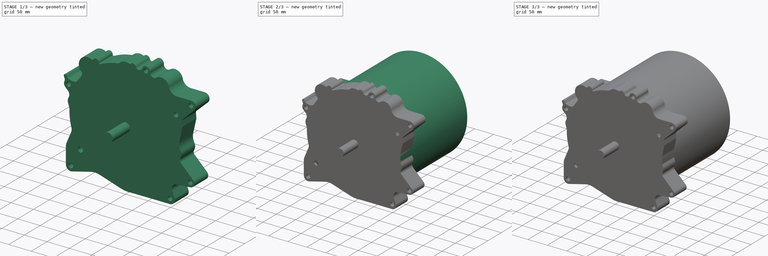
[diagram: build sequence overview — one tinted view per stage of 3, left to right]
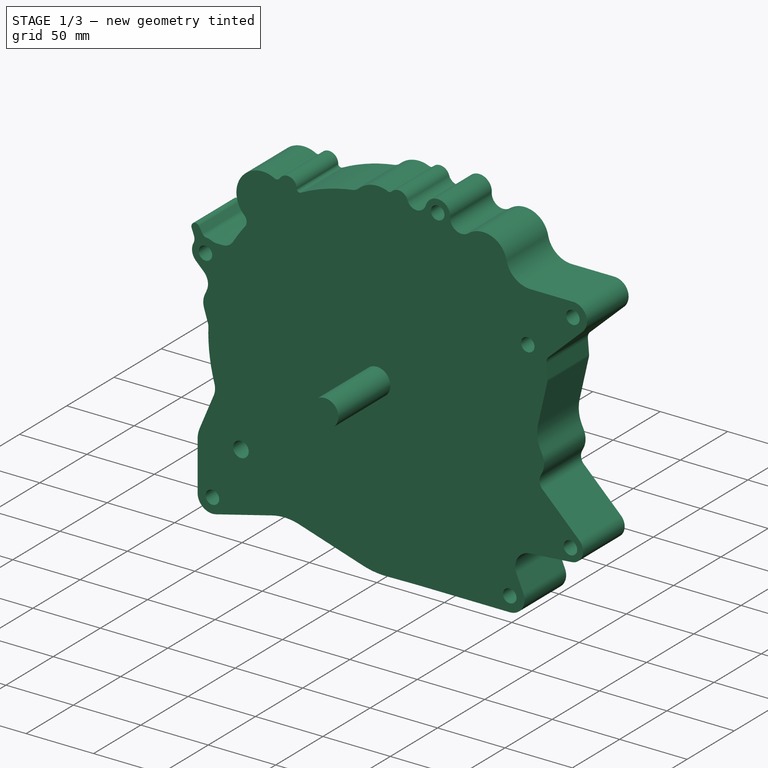
[diagram: stage 1 of 3 — iso view after this stage's code; geometry added in this stage tinted green]
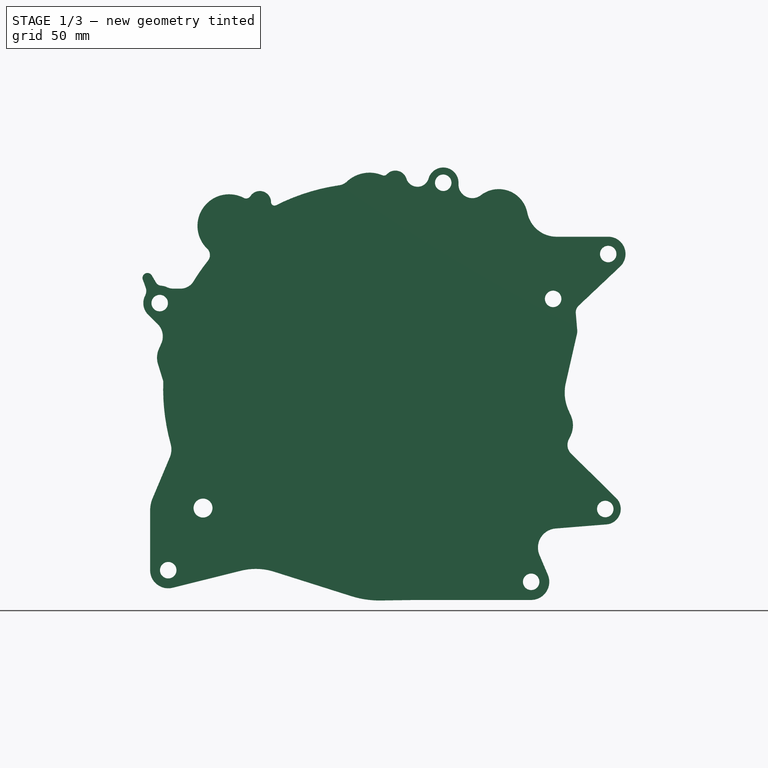
[diagram: stage 1 of 3 — front view after this stage's code; geometry added in this stage tinted green]
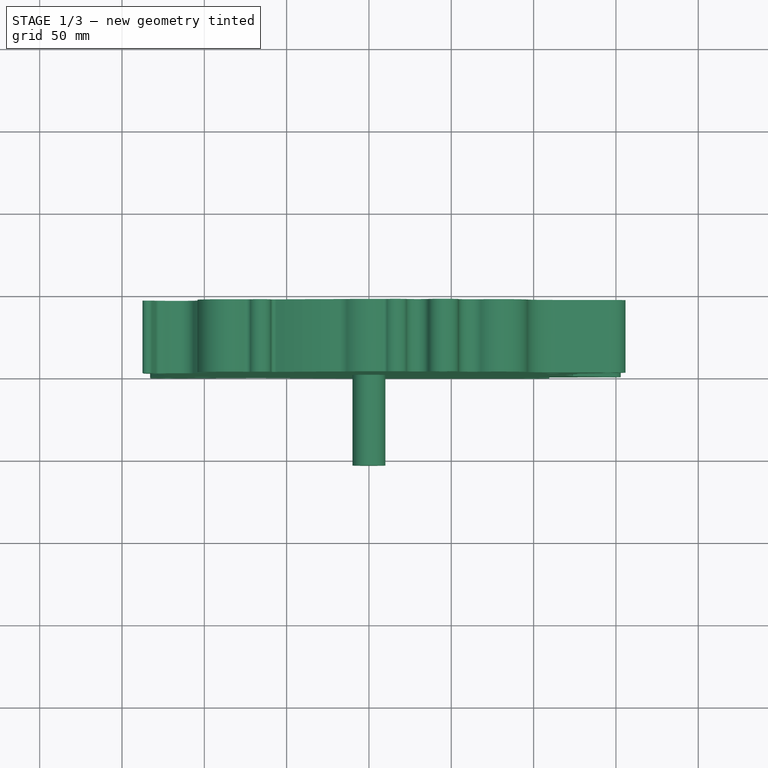
[diagram: stage 1 of 3 — top view after this stage's code; geometry added in this stage tinted green]
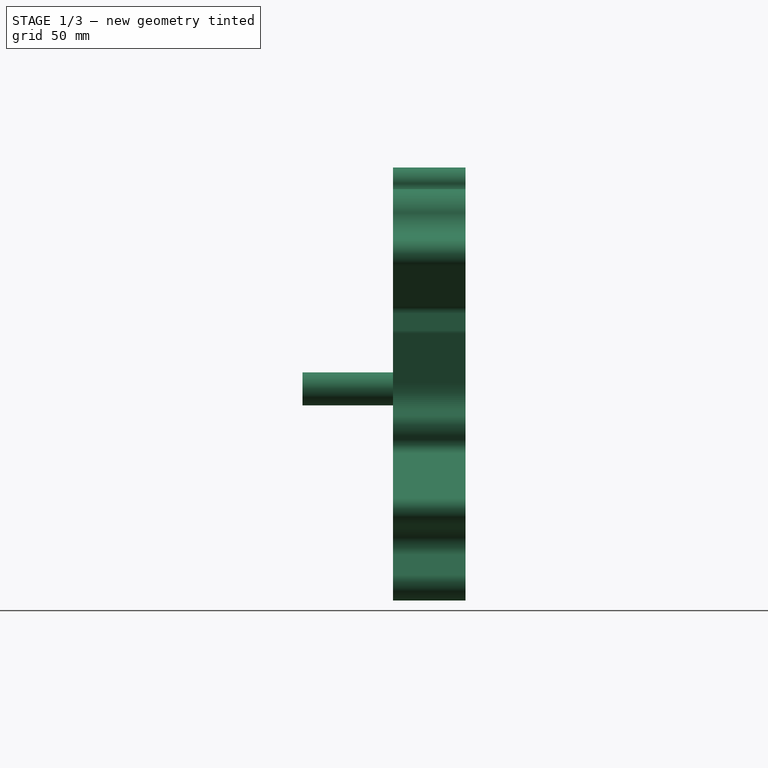
[diagram: stage 1 of 3 — right view after this stage's code; geometry added in this stage tinted green]
FCSTD DOCUMENT  (FreeCAD 0.19R21125 (Git))
Label: LEAF_MOTOR
License: All rights reserved
LicenseURL: http://en.wikipedia.org/wiki/All_rights_reserved
objects: Sketcher::SketchObject×6, PartDesign::Pad×6, PartDesign::Body×1
note: 19 computed .brp shape members not serialized (recipe doc carries the construction recipe); baked Part::Feature solids carry a one-line shape summary decoded from their .brp

FEATURE [Sketcher::SketchObject] Sketch
  MapMode = 5
  Placement = pos=(0,0,0) rot=(1,0,0;1.5708rad)
  Support = -> [XZ_Plane]
  sketch-geometry (1):
    g0: Circle CenterX=0 CenterY=0 CenterZ=0 NormalX=0 NormalY=0 NormalZ=1 AngleXU=0 Radius=10
  constraints (2):
    c: Coincident(g0,g-1)
    c: Radius(g0) = 10
FEATURE [PartDesign::Pad] Pad
  Length = 55
  Length2 = 100
  Placement = pos=(0,0,0) rot=(1,0,0;1.5708rad)
  Profile = -> Sketch
  Type = 0
FEATURE [Sketcher::SketchObject] Sketch001
  MapMode = 5
  Placement = pos=(0,0,0) rot=(1,0,0;1.5708rad)
  Support = -> [XZ_Plane]
  sketch-geometry (77):
    g0: Circle CenterX=145.31 CenterY=81.91 CenterZ=0 NormalX=0 NormalY=0 NormalZ=1 AngleXU=0 Radius=5
    g1: Circle CenterX=45.11 CenterY=125.2 CenterZ=0 NormalX=0 NormalY=0 NormalZ=1 AngleXU=0 Radius=5
    g2: Circle CenterX=143.53 CenterY=-72.95 CenterZ=0 NormalX=0 NormalY=0 NormalZ=1 AngleXU=0 Radius=5
    g3: Circle CenterX=98.52 CenterY=-117.19 CenterZ=0 NormalX=0 NormalY=0 NormalZ=1 AngleXU=0 Radius=5
    g4: Circle CenterX=-121.92 CenterY=-110.12 CenterZ=0 NormalX=0 NormalY=0 NormalZ=1 AngleXU=0 Radius=5
    g5: Circle CenterX=-127.1 CenterY=52.11 CenterZ=0 NormalX=0 NormalY=0 NormalZ=1 AngleXU=0 Radius=5
    g6: ArcOfCircle CenterX=78.8 CenterY=103.63 CenterZ=0 NormalX=0 NormalY=0 NormalZ=1 AngleXU=0 Radius=17.7094 StartAngle=0.194383 EndAngle=2.23046
    g7: Circle CenterX=111.87 CenterY=54.67 CenterZ=0 NormalX=0 NormalY=0 NormalZ=1 AngleXU=0 Radius=5
    g8: Circle CenterX=-100.79 CenterY=-72.38 CenterZ=0 NormalX=0 NormalY=0 NormalZ=1 AngleXU=0 Radius=5.7521
    g9: LineSegment StartX=-77.6769 StartY=-110.435 StartZ=0 EndX=-119.261 EndY=-120.794 EndZ=0
    g10: LineSegment StartX=-132.92 StartY=-73.8836 StartZ=0 EndX=-132.92 EndY=-110.12 EndZ=0
    g11: ArcOfCircle CenterX=-121.92 CenterY=-110.12 CenterZ=0 NormalX=0 NormalY=0 NormalZ=1 AngleXU=0 Radius=11 StartAngle=3.14159 EndAngle=4.95653
    g12: GeomPoint X=-121.92 Y=-110.12 Z=0
    g13: GeomPoint X=-121.92 Y=-110.12 Z=0
    g14: GeomPoint X=-121.92 Y=-110.12 Z=0
    g15: GeomPoint X=-121.92 Y=-110.12 Z=0
    g16: GeomPoint X=-121.92 Y=-110.12 Z=0
    g17: GeomPoint X=-121.92 Y=-110.12 Z=0
    g18: GeomPoint X=-121.92 Y=-110.12 Z=0
    g19: LineSegment StartX=-57.595 StartY=-111.059 StartZ=0 EndX=-10.6088 EndY=-125.917 EndZ=0
    g20: LineSegment StartX=7.13742 StartY=-128.523 StartZ=0 EndX=26.0447 EndY=-128.245 EndZ=0
    g21: LineSegment StartX=33.532 StartY=-128.19 StartZ=0 EndX=98.52 EndY=-128.19 EndZ=0
    g22: LineSegment StartX=108.644 StartY=-112.888 StartZ=0 EndX=103.568 EndY=-100.943 EndZ=0
    g23: LineSegment StartX=113.341 StartY=-84.8 StartZ=0 EndX=144.283 EndY=-82.3099 EndZ=0
    g24: LineSegment StartX=150.121 StartY=-66.2619 StartZ=0 EndX=122.754 EndY=-39.2916 EndZ=0
    g25: ArcOfCircle CenterX=143.53 CenterY=-72.95 CenterZ=0 NormalX=0 NormalY=0 NormalZ=1 AngleXU=0 Radius=9.39014 StartAngle=4.79269 EndAngle=7.07588
    g26: ArcOfCircle CenterX=98.52 CenterY=-117.19 CenterZ=0 NormalX=0 NormalY=0 NormalZ=1 AngleXU=0 Radius=11 StartAngle=4.71239 EndAngle=6.68499
    g27: ArcOfCircle CenterX=114.274 CenterY=-96.3945 CenterZ=0 NormalX=0 NormalY=0 NormalZ=1 AngleXU=0 Radius=11.6319 StartAngle=1.6511 EndAngle=3.54339
    g28: ArcOfCircle CenterX=-68.7411 CenterY=-146.306 CenterZ=0 NormalX=0 NormalY=0 NormalZ=1 AngleXU=0 Radius=36.9672 StartAngle=1.26452 EndAngle=1.81494
    g29: ArcOfCircle CenterX=6.31227 CenterY=-72.4088 CenterZ=0 NormalX=0 NormalY=0 NormalZ=1 AngleXU=0 Radius=56.1204 StartAngle=4.40611 EndAngle=4.72709
    g30: ArcOfCircle CenterX=33.532 CenterY=-637.417 CenterZ=0 NormalX=0 NormalY=0 NormalZ=1 AngleXU=0 Radius=509.227 StartAngle=1.5708 EndAngle=1.5855
    g31: LineSegment StartX=-131.421 StartY=-66.4509 StartZ=0 EndX=-120.958 EndY=-41.5672 EndZ=0
    g32: ArcOfCircle CenterX=0 CenterY=0 CenterZ=0 NormalX=0 NormalY=0 NormalZ=1 AngleXU=0 Radius=125 StartAngle=3.10493 EndAngle=3.4125
    g33: ArcOfCircle CenterX=0 CenterY=0 CenterZ=0 NormalX=0 NormalY=0 NormalZ=1 AngleXU=0 Radius=125 StartAngle=2.46886 EndAngle=2.59213
    g34: ArcOfCircle CenterX=0 CenterY=0 CenterZ=0 NormalX=0 NormalY=0 NormalZ=1 AngleXU=0 Radius=125 StartAngle=1.7161 EndAngle=2.039
    g35: LineSegment StartX=113.959 StartY=92.4276 StartZ=0 EndX=145.31 EndY=92.4276 EndZ=0
    g36: LineSegment StartX=152.523 StartY=74.2557 StartZ=0 EndX=127.371 EndY=50.5525 EndZ=0
    g37: LineSegment StartX=125.621 StartY=45.9787 StartZ=0 EndX=126.516 EndY=35.3818 EndZ=0
    g38: LineSegment StartX=126.394 StartY=33.6402 StartZ=0 EndX=119.54 EndY=3.52367 EndZ=0
    g39: LineSegment StartX=121.143 StartY=-12.8736 StartZ=0 EndX=122.659 EndY=-16.2806 EndZ=0
    g40: LineSegment StartX=122.494 StartY=-28.3585 StartZ=0 EndX=121.283 EndY=-30.8895 EndZ=0
    g41: LineSegment StartX=-124.916 StartY=4.58158 StartZ=0 EndX=-128.147 EndY=15.1065 EndZ=0
    g42: LineSegment StartX=-127.606 StartY=24.2389 StartZ=0 EndX=-126.126 EndY=27.5858 EndZ=0
    g43: LineSegment StartX=-128.395 StartY=39.4523 StartZ=0 EndX=-134.488 EndY=45.4427 EndZ=0
    g44: ArcOfCircle CenterX=-127.1 CenterY=52.11 CenterZ=0 NormalX=0 NormalY=0 NormalZ=1 AngleXU=0 Radius=9.95179 StartAngle=2.66841 EndAngle=3.87575
    g45: ArcOfCircle CenterX=-114.445 CenterY=70.0825 CenterZ=0 NormalX=0 NormalY=0 NormalZ=1 AngleXU=0 Radius=9.19867 StartAngle=4.71239 EndAngle=5.73372
    g46: ArcOfCircle CenterX=-127.1 CenterY=52.11 CenterZ=0 NormalX=0 NormalY=0 NormalZ=1 AngleXU=0 Radius=10.6173 StartAngle=1.13735 EndAngle=1.49131
    g47: ArcOfCircle CenterX=-134.525 CenterY=67.3959 CenterZ=0 NormalX=0 NormalY=0 NormalZ=1 AngleXU=0 Radius=3.03133 StartAngle=0.538206 EndAngle=3.57907
    g48: LineSegment StartX=-135.648 StartY=61.6591 StartZ=0 EndX=-137.271 EndY=66.1117 EndZ=0
    g49: LineSegment StartX=-129.326 StartY=64.6011 StartZ=0 EndX=-131.922 EndY=68.9498 EndZ=0
    g50: LineSegment StartX=-118.727 StartY=60.8838 StartZ=0 EndX=-114.445 EndY=60.8838 EndZ=0
    g51: ArcOfCircle CenterX=-66.2801 CenterY=113.377 CenterZ=0 NormalX=0 NormalY=0 NormalZ=1 AngleXU=0 Radius=6.81232 StartAngle=0.00576419 EndAngle=2.56858
    g52: ArcOfCircle CenterX=-84.95 CenterY=99 CenterZ=0 NormalX=0 NormalY=0 NormalZ=1 AngleXU=0 Radius=19.2018 StartAngle=1.08808 EndAngle=3.94736
    g53: ArcOfCircle CenterX=0.332168 CenterY=111.208 CenterZ=0 NormalX=0 NormalY=0 NormalZ=1 AngleXU=0 Radius=20.1273 StartAngle=1.17216 EndAngle=2.3197
    g54: ArcOfCircle CenterX=16.0562 CenterY=125.557 CenterZ=0 NormalX=0 NormalY=0 NormalZ=1 AngleXU=0 Radius=7.03106 StartAngle=0.306903 EndAngle=2.39152
    g55: ArcOfCircle CenterX=45.11 CenterY=125.2 CenterZ=0 NormalX=0 NormalY=0 NormalZ=1 AngleXU=0 Radius=9.26978 StartAngle=6.23132 EndAngle=9.13836
    g56: ArcOfCircle CenterX=62.7826 CenterY=124.283 CenterZ=0 NormalX=0 NormalY=0 NormalZ=1 AngleXU=0 Radius=8.42657 StartAngle=3.08973 EndAngle=5.37205
    g57: ArcOfCircle CenterX=113.959 CenterY=110.552 CenterZ=0 NormalX=0 NormalY=0 NormalZ=1 AngleXU=0 Radius=18.124 StartAngle=3.33598 EndAngle=4.71239
    g58: ArcOfCircle CenterX=145.31 CenterY=81.91 CenterZ=0 NormalX=0 NormalY=0 NormalZ=1 AngleXU=0 Radius=10.5176 StartAngle=5.46813 EndAngle=7.85398
    g59: ArcOfCircle CenterX=131.235 CenterY=46.4528 CenterZ=0 NormalX=0 NormalY=0 NormalZ=1 AngleXU=0 Radius=5.63341 StartAngle=2.32654 EndAngle=3.22584
    g60: ArcOfCircle CenterX=144.982 CenterY=-2.26635 CenterZ=0 NormalX=0 NormalY=0 NormalZ=1 AngleXU=0 Radius=26.0924 StartAngle=2.91783 EndAngle=3.56024
    g61: ArcOfCircle CenterX=109.49 CenterY=-22.1402 CenterZ=0 NormalX=0 NormalY=0 NormalZ=1 AngleXU=0 Radius=14.4138 StartAngle=5.83713 EndAngle=6.70183
    g62: ArcOfCircle CenterX=127.911 CenterY=-34.0589 CenterZ=0 NormalX=0 NormalY=0 NormalZ=1 AngleXU=0 Radius=7.34675 StartAngle=2.69554 EndAngle=3.93429
    g63: ArcOfCircle CenterX=-101.987 CenterY=81.2547 CenterZ=0 NormalX=0 NormalY=0 NormalZ=1 AngleXU=0 Radius=5.39794 StartAngle=5.61045 EndAngle=7.08895
    g64: ArcOfCircle CenterX=-74.6019 CenterY=118.746 CenterZ=0 NormalX=0 NormalY=0 NormalZ=1 AngleXU=0 Radius=3.09136 StartAngle=4.22968 EndAngle=5.71017
    g65: ArcOfCircle CenterX=-57.3609 CenterY=113.428 CenterZ=0 NormalX=0 NormalY=0 NormalZ=1 AngleXU=0 Radius=2.10695 StartAngle=3.14736 EndAngle=5.18059
    g66: ArcOfCircle CenterX=29.4672 CenterY=129.807 CenterZ=0 NormalX=0 NormalY=0 NormalZ=1 AngleXU=0 Radius=7.03734 StartAngle=3.4485 EndAngle=5.99676
    g67: ArcOfCircle CenterX=-19.3769 CenterY=132.411 CenterZ=0 NormalX=0 NormalY=0 NormalZ=1 AngleXU=0 Radius=8.82112 StartAngle=4.8577 EndAngle=5.46129
    g68: ArcOfCircle CenterX=9.10393 CenterY=132.035 CenterZ=0 NormalX=0 NormalY=0 NormalZ=1 AngleXU=0 Radius=2.47119 StartAngle=4.31376 EndAngle=5.53312
    g69: ArcOfCircle CenterX=120.846 CenterY=34.903 CenterZ=0 NormalX=0 NormalY=0 NormalZ=1 AngleXU=0 Radius=5.69049 StartAngle=6.05942 EndAngle=6.36743
    g70: ArcOfCircle CenterX=-113.744 CenterY=-73.8836 CenterZ=0 NormalX=0 NormalY=0 NormalZ=1 AngleXU=0 Radius=19.1757 StartAngle=2.74356 EndAngle=3.14159
    g71: ArcOfCircle CenterX=-132.378 CenterY=-36.7654 CenterZ=0 NormalX=0 NormalY=0 NormalZ=1 AngleXU=0 Radius=12.3882 StartAngle=5.88515 EndAngle=6.55409
    g72: ArcOfCircle CenterX=-135.839 CenterY=31.8794 CenterZ=0 NormalX=0 NormalY=0 NormalZ=1 AngleXU=0 Radius=10.6194 StartAngle=5.86695 EndAngle=7.07713
    g73: ArcOfCircle CenterX=-115.636 CenterY=18.9474 CenterZ=0 NormalX=0 NormalY=0 NormalZ=1 AngleXU=0 Radius=13.0875 StartAngle=2.72536 EndAngle=3.43945
    g74: ArcOfCircle CenterX=-125.944 CenterY=66.62 CenterZ=0 NormalX=0 NormalY=0 NormalZ=1 AngleXU=0 Radius=3.93868 StartAngle=3.6798 EndAngle=4.6329
    g75: ArcOfCircle CenterX=-141.55 CenterY=59.5079 CenterZ=0 NormalX=0 NormalY=0 NormalZ=1 AngleXU=0 Radius=6.28182 StartAngle=5.81001 EndAngle=6.63271
    g76: ArcOfCircle CenterX=-118.727 CenterY=70.2012 CenterZ=0 NormalX=0 NormalY=0 NormalZ=1 AngleXU=0 Radius=9.31736 StartAngle=4.27895 EndAngle=4.71239
  constraints (124):
    c: Vertical(g10)
    c: Tangent(g9,g11) = 1.5708
    c: Tangent(g10,g11) = -1.5708
    c: DistanceX(g4,g-1) = 121.92
    c: DistanceY(g4,g-1) = 110.12
    c: DistanceY(g-1,g1) = 125.2
    c: DistanceY(g-1,g6) = 103.63
    c: DistanceY(g-1,g7) = 54.67
    c: DistanceY(g-1,g0) = 81.91
    c: DistanceY(g2,g-1) = 72.95
    c: DistanceY(g3,g-1) = 117.19
    c: DistanceY(g-1,g5) = 52.11
    c: DistanceX(g5,g-1) = 127.1
    c: DistanceX(g8,g-1) = 100.79
    c: DistanceY(g8,g-1) = 72.38
    c: DistanceX(g-1,g1) = 45.11
    c: DistanceX(g-1,g6) = 78.8
    c: DistanceX(g-1,g7) = 111.87
    c: DistanceX(g-1,g0) = 145.31
    c: DistanceX(g-1,g2) = 143.53
    c: DistanceX(g-1,g3) = 98.52
    c: Coincident(g12,g11)
    c: Coincident(g13,g4)
    c: Coincident(g14,g11)
    c: Coincident(g15,g4)
    c: Coincident(g16,g4)
    c: Coincident(g17,g11)
    c: Coincident(g18,g4)
    c: Coincident(g4,g11)
    c: Horizontal(g21)
    c: Tangent(g23,g25) = -1.5708
    c: Tangent(g24,g25) = -1.5708
    c: Tangent(g21,g26) = -1.5708
    c: Tangent(g22,g26) = -1.5708
    c: Coincident(g26,g3)
    c: Coincident(g25,g2)
    c: Tangent(g23,g27) = 1.5708
    c: Tangent(g22,g27) = 1.5708
    c: Tangent(g9,g28) = -1.5708
    c: Tangent(g19,g28) = 1.5708
    c: Tangent(g19,g29) = -1.5708
    c: Tangent(g20,g29) = -1.5708
    c: Tangent(g20,g30) = 1.5708
    c: Tangent(g21,g30) = 1.5708
    c: Radius(g26) = 11
    c: Equal(g3,g4)
    c: Equal(g4,g2)
    c: Equal(g2,g0)
    c: Equal(g0,g7)
    c: Equal(g7,g1)
    c: Equal(g1,g5)
    c: Radius(g3) = 5
    c: Coincident(g32,g-1)
    c: Coincident(g33,g32)
    c: Coincident(g34,g32)
    c: Equal(g32,g33)
    c: Equal(g33,g34)
    c: Radius(g32) = 125
    c: Radius(g11) = 11
    c: Horizontal(g35)
    c: Coincident(g41,g32)
    c: Coincident(g44,g5)
    c: Coincident(g44,g43)
    c: Coincident(g45,g33)
    c: Coincident(g46,g5)
    c: Coincident(g48,g47)
    c: Coincident(g49,g47)
    c: Coincident(g50,g45)
    c: Horizontal(g50)
    c: Coincident(g55,g1)
    c: Coincident(g56,g55)
    c: Coincident(g35,g57)
    c: Coincident(g6,g57)
    c: Coincident(g6,g56)
    c: Tangent(g36,g58) = 1.5708
    c: Tangent(g35,g58) = 1.5708
    c: Tangent(g37,g59) = -1.5708
    c: Tangent(g36,g59) = -1.5708
    c: Tangent(g38,g60) = -1.5708
    c: Tangent(g39,g60) = -1.5708
    c: Tangent(g39,g61) = 1.5708
    c: Tangent(g40,g61) = 1.5708
    c: Tangent(g24,g62) = 1.5708
    c: Tangent(g40,g62) = -1.5708
    c: Tangent(g33,g63) = 1.5708
    c: Tangent(g52,g63) = 1.5708
    c: Tangent(g51,g64) = 1.5708
    c: Tangent(g52,g64) = 1.5708
    c: Tangent(g51,g65) = 1.5708
    c: Tangent(g34,g65) = 1.5708
    c: DistanceX(g52,g32) = 84.95
    c: DistanceY(g32,g52) = 99
    c: Coincident(g55,g66)
    c: Coincident(g54,g66)
    c: Tangent(g53,g67) = 1.5708
    c: Tangent(g34,g67) = 1.5708
    c: Tangent(g54,g68) = 1.5708
    c: Tangent(g53,g68) = 1.5708
    c: Tangent(g56,g55)
    c: Tangent(g57,g35)
    c: Coincident(g58,g0)
    c: Tangent(g37,g69) = 1.5708
    c: Tangent(g38,g69) = 1.5708
    c: Tangent(g10,g70) = -1.5708
    c: Tangent(g31,g70) = 1.5708
    c: Tangent(g31,g71) = -1.5708
    c: Tangent(g32,g71) = 1.5708
    c: Tangent(g42,g72) = -1.5708
    c: Tangent(g43,g72) = -1.5708
    c: Tangent(g42,g73) = 1.5708
    c: Tangent(g41,g73) = 1.5708
    c: Tangent(g46,g74) = 1.5708
    c: Tangent(g49,g74) = 1.5708
    c: Tangent(g44,g75) = 1.5708
    c: Tangent(g48,g75) = -1.5708
    c: Tangent(g50,g76) = -1.5708
    c: Tangent(g46,g76) = 1.5708
    c: Tangent(g45,g50)
    c: Tangent(g45,g33)
    c: Tangent(g49,g47)
    c: Tangent(g54,g66)
    c: Tangent(g55,g66)
    c: Tangent(g6,g56)
    c: Tangent(g6,g57)
FEATURE [PartDesign::Pad] Pad001
  BaseFeature = -> Pad
  Length = 44
  Length2 = 100
  Placement = pos=(0,0,0) rot=(1,0,0;1.5708rad)
  Profile = -> Sketch001
  Reversed = true
  Type = 0
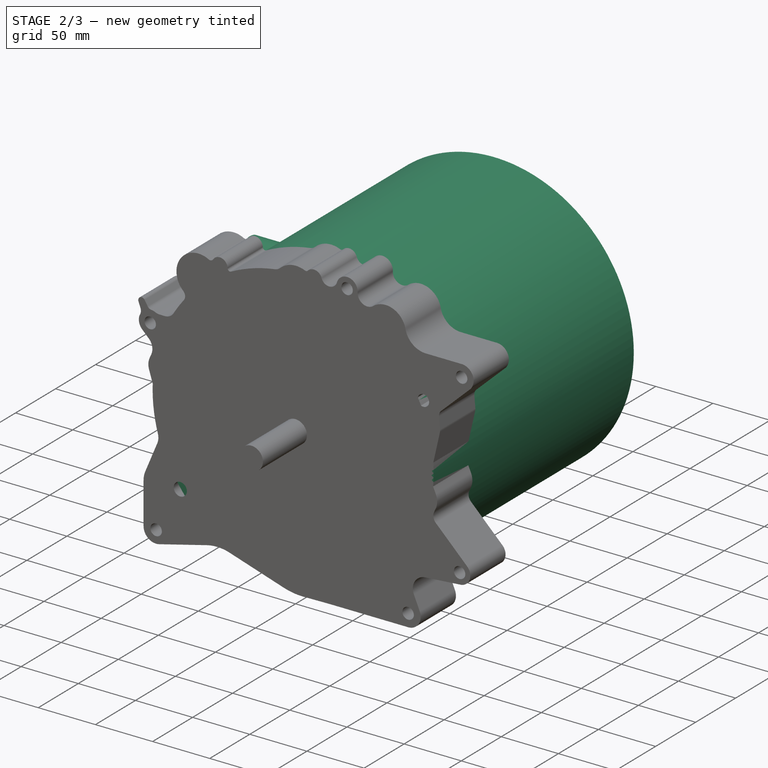
[diagram: stage 2 of 3 — iso view after this stage's code; geometry added in this stage tinted green]
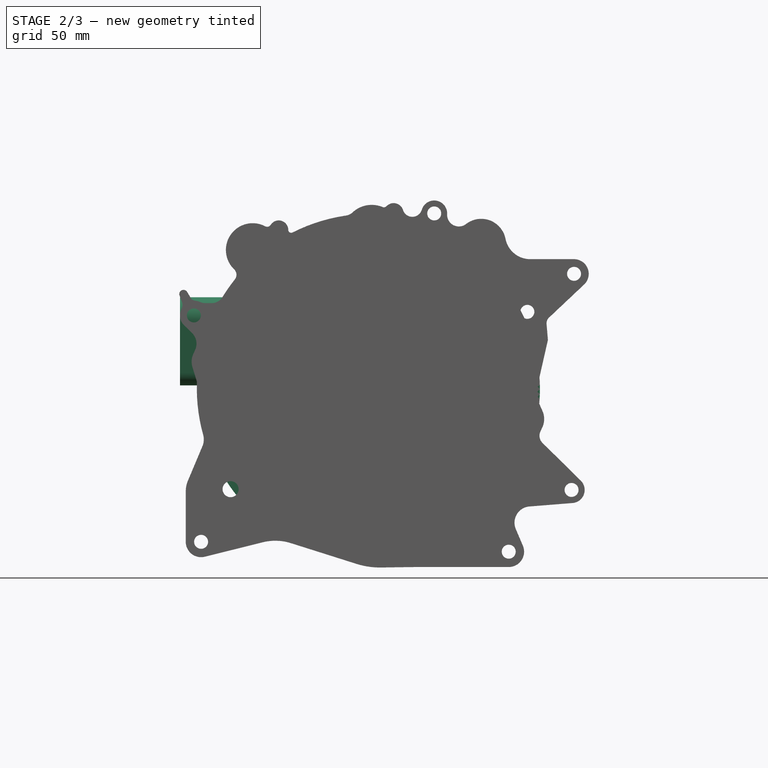
[diagram: stage 2 of 3 — front view after this stage's code; geometry added in this stage tinted green]
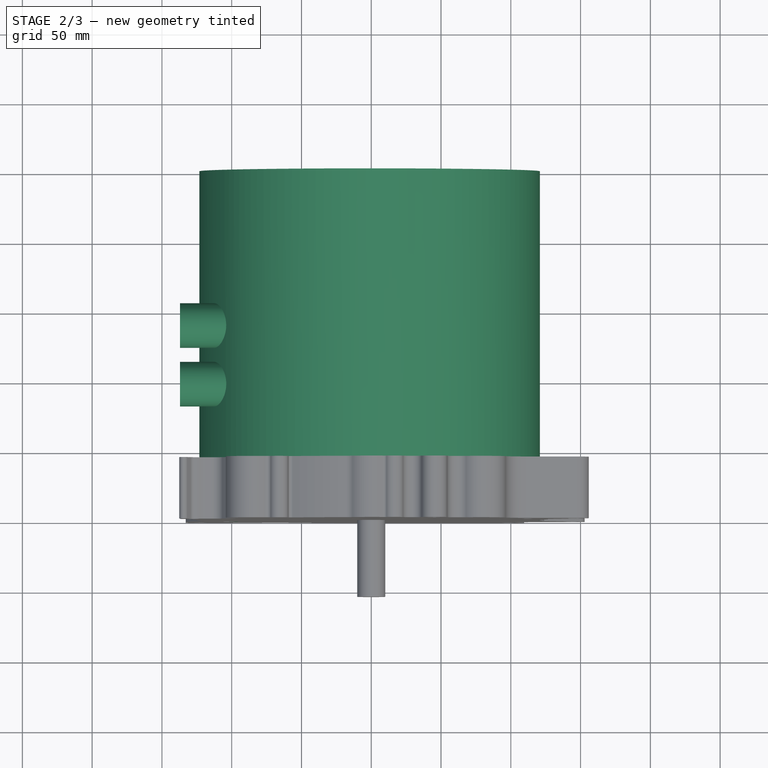
[diagram: stage 2 of 3 — top view after this stage's code; geometry added in this stage tinted green]
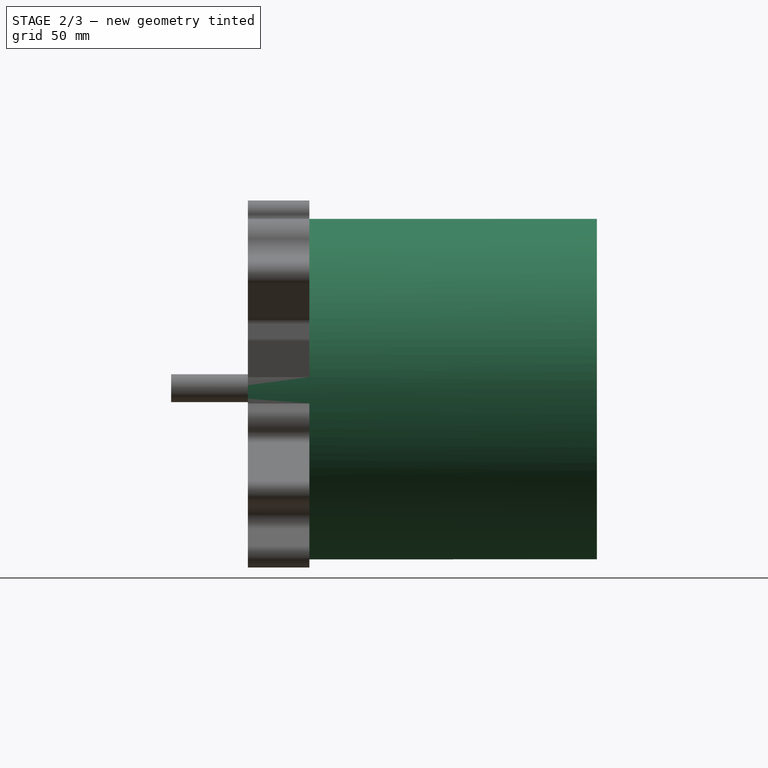
[diagram: stage 2 of 3 — right view after this stage's code; geometry added in this stage tinted green]
FEATURE [Sketcher::SketchObject] Sketch002
  MapMode = 5
  Placement = pos=(0,0,0) rot=(1,0,0;1.5708rad)
  Support = -> [XZ_Plane]
  sketch-geometry (1):
    g0: Circle CenterX=-1.16419 CenterY=-0.6689 CenterZ=0 NormalX=0 NormalY=0 NormalZ=1 AngleXU=0 Radius=122
  constraints (1):
    c: Radius(g0) = 122
FEATURE [PartDesign::Pad] Pad002
  BaseFeature = -> Pad001
  Length = 250
  Length2 = 100
  Placement = pos=(0,0,0) rot=(1,0,0;1.5708rad)
  Profile = -> Sketch002
  Reversed = true
  Type = 0
FEATURE [Sketcher::SketchObject] Sketch003
  MapMode = 5
  Placement = pos=(0,0,0) rot=(0.577159,0.577733,0.577159;2.09382rad)
  Support = -> [YZ_Plane]
  sketch-geometry (8):
    g0: ArcOfCircle CenterX=138.5 CenterY=49.2001 CenterZ=0 NormalX=0 NormalY=0 NormalZ=1 AngleXU=0 Radius=16 StartAngle=6.0645 EndAngle=9.50797
    g1: ArcOfCircle CenterX=96.5 CenterY=49.209 CenterZ=0 NormalX=0 NormalY=0 NormalZ=1 AngleXU=0 Radius=16 StartAngle=6.11874 EndAngle=9.56191
    g2: ArcOfCircle CenterX=96 CenterY=12.5995 CenterZ=0 NormalX=0 NormalY=0 NormalZ=1 AngleXU=0 Radius=10.5 StartAngle=3.27873 EndAngle=6.11874
    g3: ArcOfCircle CenterX=136 CenterY=12.5984 CenterZ=0 NormalX=0 NormalY=0 NormalZ=1 AngleXU=0 Radius=10.5 StartAngle=3.14555 EndAngle=6.0645
    g4: LineSegment StartX=106.358 StartY=10.8805 StartZ=0 EndX=112.284 EndY=46.5897 EndZ=0
    g5: LineSegment StartX=85.5986 StartY=11.164 StartZ=0 EndX=80.6502 EndY=47.0218 EndZ=0
    g6: LineSegment StartX=125.5 StartY=12.5569 StartZ=0 EndX=122.555 EndY=47.8705 EndZ=0
    g7: LineSegment StartX=146.25 StartY=10.3205 StartZ=0 EndX=154.119 EndY=45.729 EndZ=0
  constraints (24):
    c: Equal(g3,g2)
    c: Equal(g1,g0)
    c: PointOnObject(g6,g3)
    c: PointOnObject(g3,g6)
    c: Coincident(g2,g5)
    c: Coincident(g1,g4)
    c: Coincident(g6,g3)
    c: Tangent(g3,g7) = -1.5708
    c: Tangent(g1,g4)
    c: Coincident(g0,g7)
    c: Tangent(g7,g0)
    c: Coincident(g6,g0)
    c: Coincident(g5,g1)
    c: Tangent(g5,g1)
    c: Tangent(g6,g0)
    c: Radius(g0) = 16
    c: Radius(g3) = 10.5
    c: DistanceX(g1,g0) = 42
    c: DistanceX(g2,g3) = 40
    c: DistanceX(g-1,g2) = 96
    c: DistanceX(g-1,g1) = 96.5
    c: Coincident(g4,g2)
    c: Tangent(g2,g4)
    c: Tangent(g2,g5)
FEATURE [PartDesign::Pad] Pad003
  BaseFeature = -> Pad002
  Length = 137
  Length2 = 100
  Placement = pos=(0,0,0) rot=(1,0,0;1.5708rad)
  Profile = -> Sketch003
  Reversed = true
  Type = 0
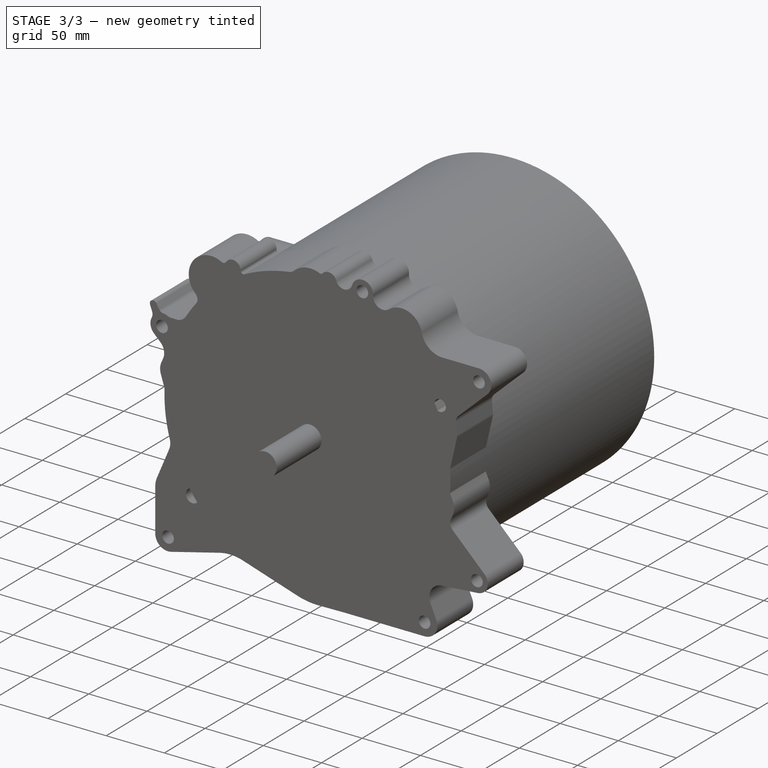
[diagram: stage 3 of 3 — iso view after this stage's code; geometry added in this stage tinted green]
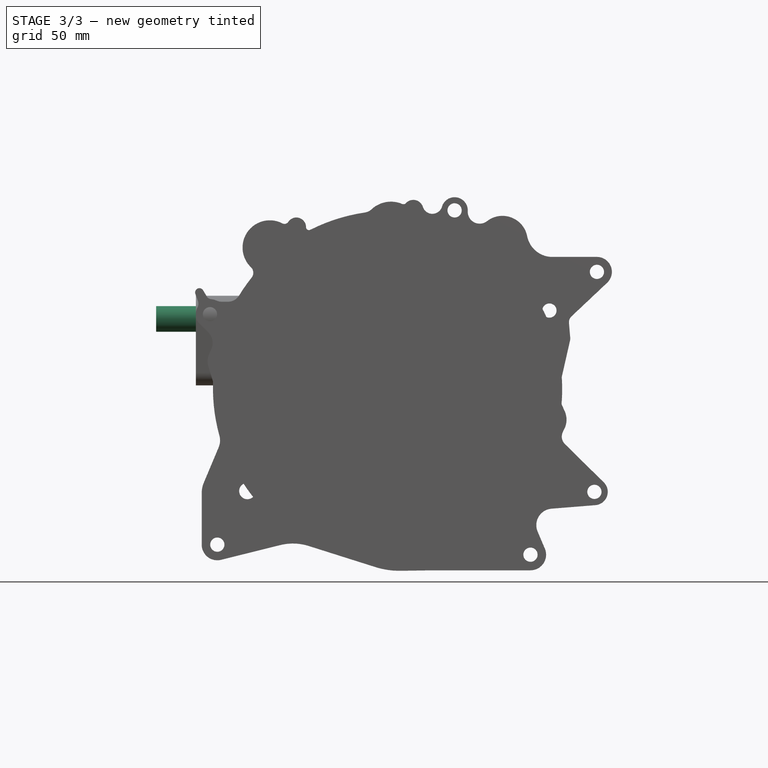
[diagram: stage 3 of 3 — front view after this stage's code; geometry added in this stage tinted green]
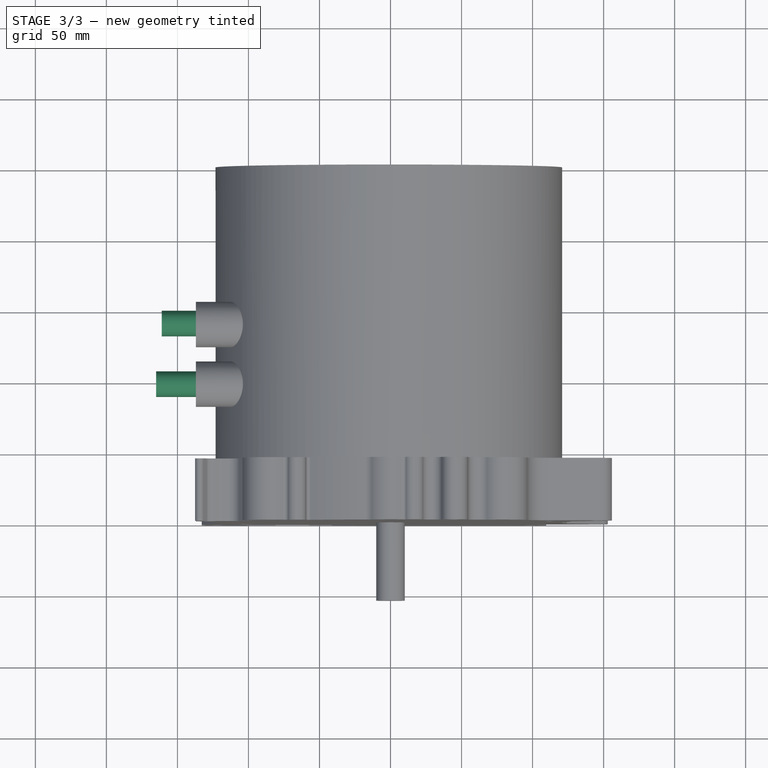
[diagram: stage 3 of 3 — top view after this stage's code; geometry added in this stage tinted green]
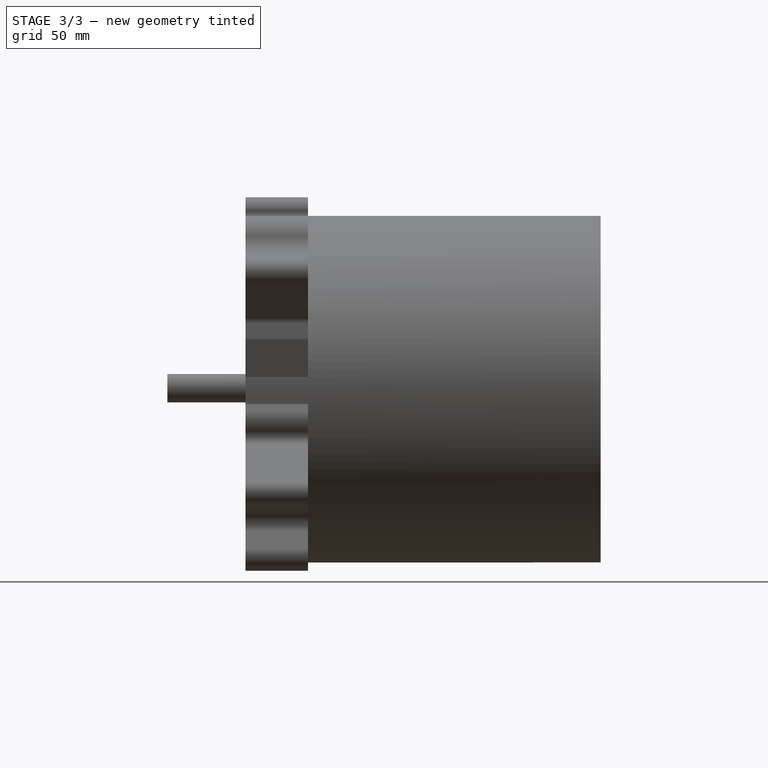
[diagram: stage 3 of 3 — right view after this stage's code; geometry added in this stage tinted green]
FEATURE [Sketcher::SketchObject] Sketch004
  MapMode = 5
  Placement = pos=(-137,-2.7977e-12,9.534e-13) rot=(-0.707107,0,0.707107;3.14159rad)
  Support = -> [Pad003]
  sketch-geometry (2):
    g0: Circle CenterX=-48.7525 CenterY=-96.5615 CenterZ=0 NormalX=0 NormalY=0 NormalZ=1 AngleXU=0 Radius=6.41055
    g1: Circle CenterX=-48.7525 CenterY=-96.5615 CenterZ=0 NormalX=0 NormalY=0 NormalZ=1 AngleXU=0 Radius=9.02917
  constraints (1):
    c: Coincident(g1,g0)
FEATURE [PartDesign::Pad] Pad004
  BaseFeature = -> Pad003
  Length = 28
  Length2 = 100
  Placement = pos=(0,0,0) rot=(1,0,0;1.5708rad)
  Profile = -> Sketch004
  Type = 0
FEATURE [Sketcher::SketchObject] Sketch005
  ExternalGeometry = -> [Pad004]
  MapMode = 5
  Placement = pos=(-137,-2.7977e-12,9.534e-13) rot=(-0.707107,0,0.707107;3.14159rad)
  Support = -> [Pad004]
  sketch-geometry (2):
    g0: Circle CenterX=-48.7525 CenterY=-139.271 CenterZ=0 NormalX=0 NormalY=0 NormalZ=1 AngleXU=0 Radius=6.41055
    g1: Circle CenterX=-48.7525 CenterY=-139.271 CenterZ=0 NormalX=0 NormalY=0 NormalZ=1 AngleXU=0 Radius=9.02917
  constraints (4):
    c: Coincident(g1,g0)
    c: Equal(g0,g-3)
    c: Equal(g1,g-4)
    c: Vertical(g0,g-4)
FEATURE [PartDesign::Pad] Pad005
  BaseFeature = -> Pad004
  Length = 24
  Length2 = 100
  Placement = pos=(0,0,0) rot=(1,0,0;1.5708rad)
  Profile = -> Sketch005
  Type = 0
FEATURE [PartDesign::Body] Body
  Group = -> [Sketch,Pad,Sketch001,Pad001,Sketch002,Pad002,Sketch003,Pad003,Sketch004,Pad004,Sketch005,Pad005]
  Origin = -> Origin
  Tip = -> Pad005
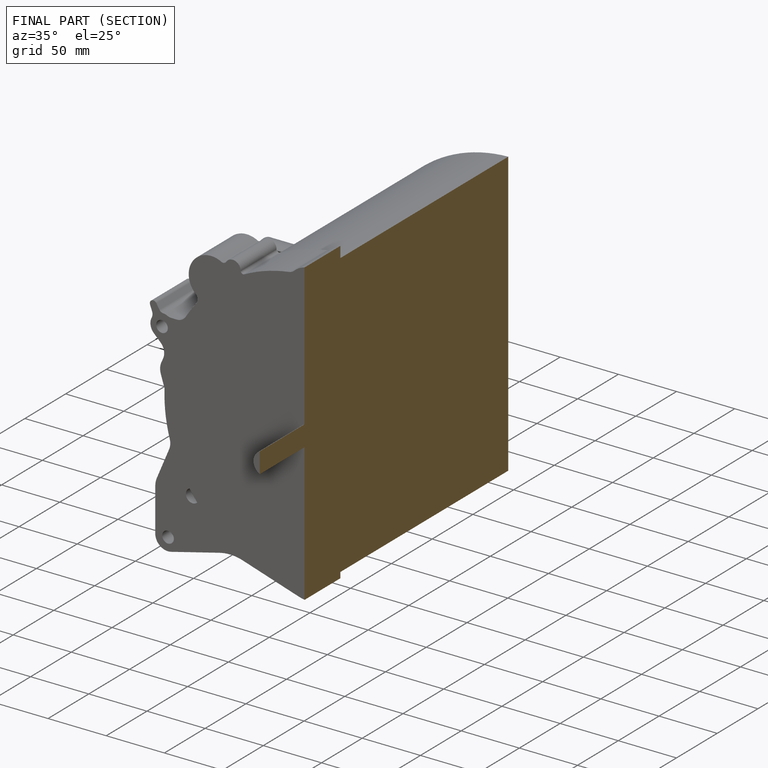
[diagram: finished part — half-section view (interior)]
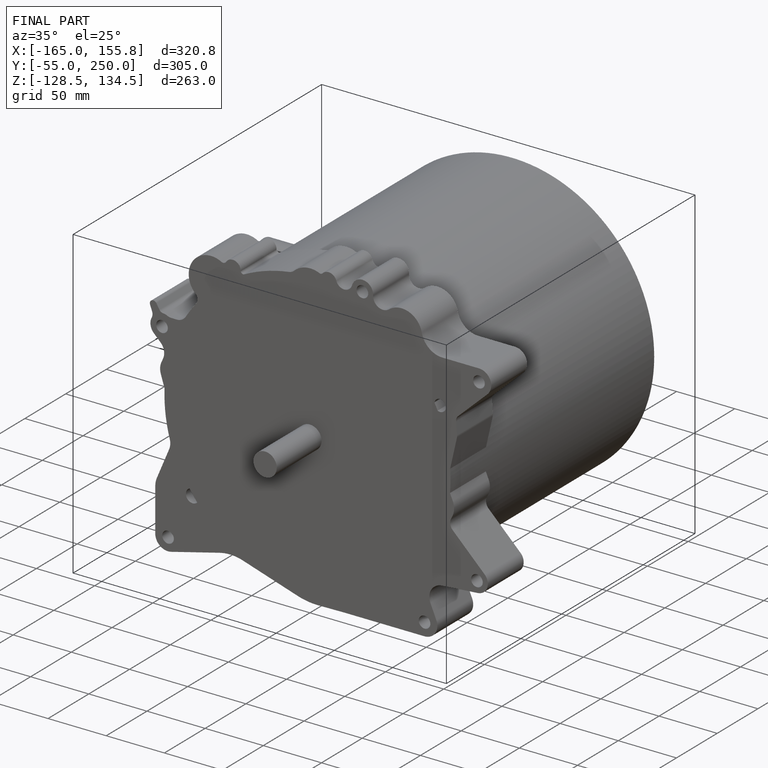
[diagram: finished part — iso view with bounding-box wireframe]
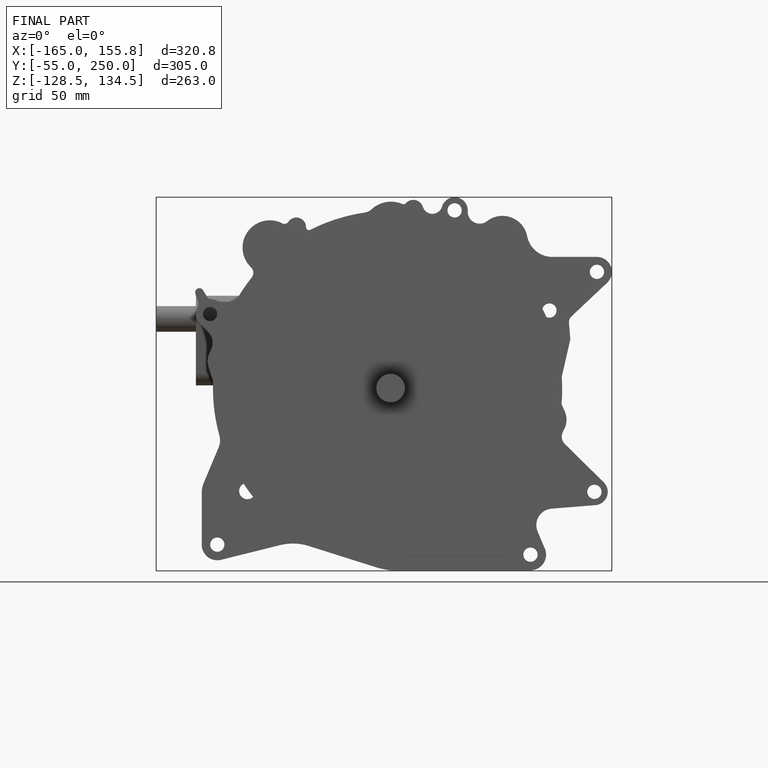
[diagram: finished part — front view with bounding-box wireframe]
